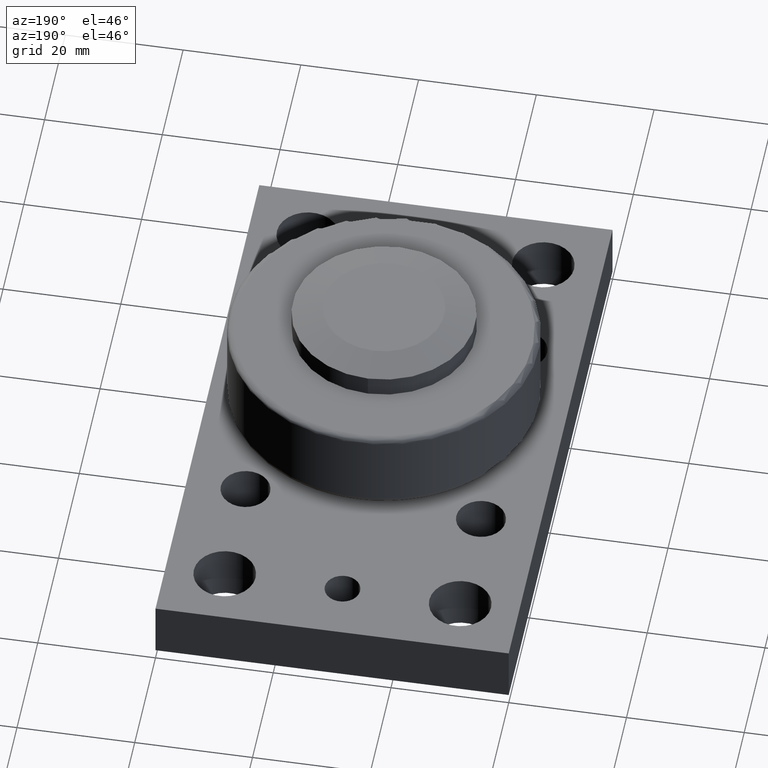
[diagram: clean part render]
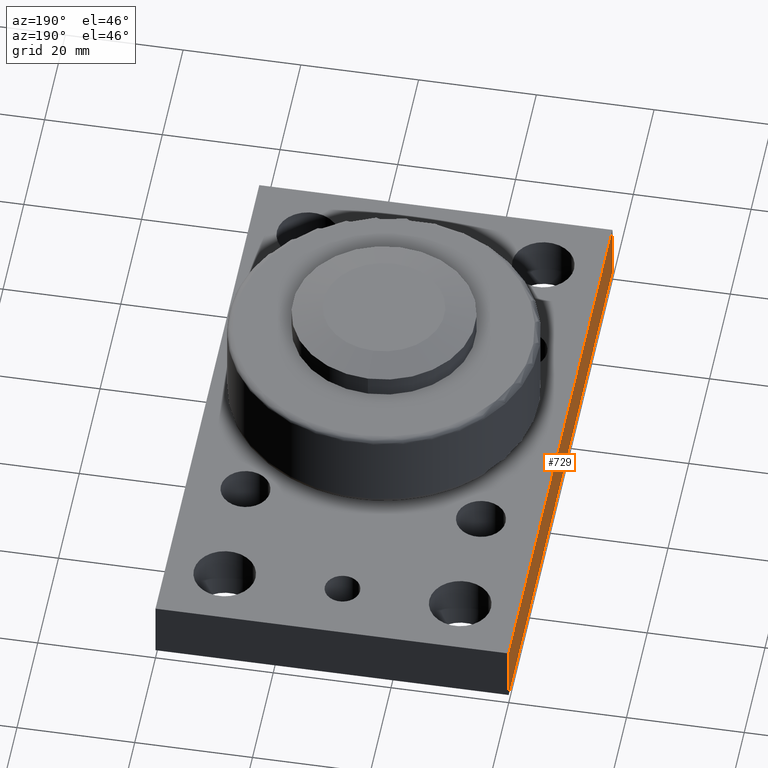
[diagram: same view with one face highlighted and labeled with its STEP entity id]
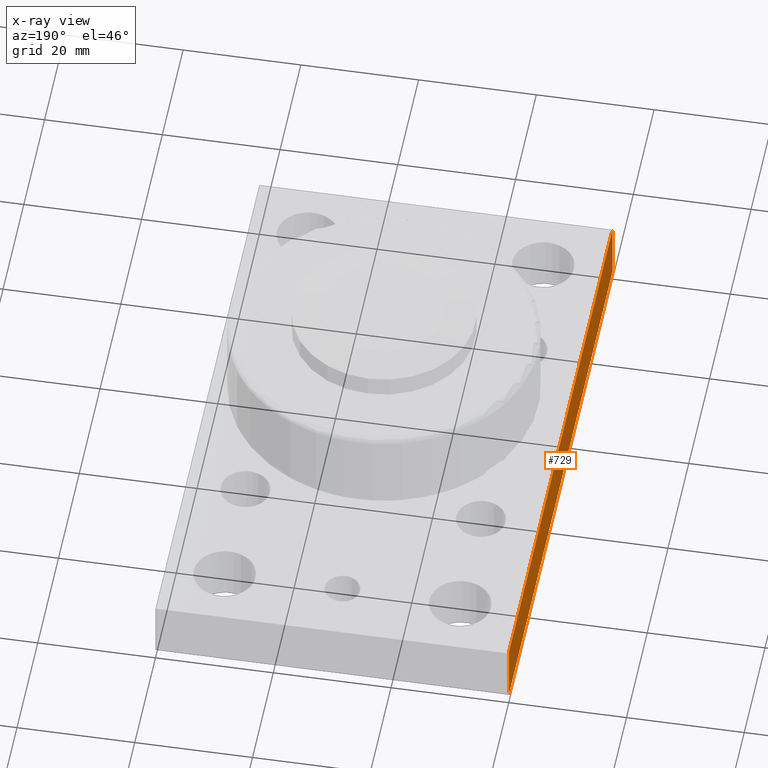
[diagram: x-ray of the same camera — body ghosted, the highlighted face saturated]
A machine part, auxiliary view. The second image highlights one B-rep face of the part: STEP entity #729.
The next image is the same camera in x-ray: the body ghosted, the highlighted face saturated — about 0% of this face is hidden behind the body in this view.
In plain terms, the highlighted planar face has unit normal (-1, 0, 0).
Its self-contained STEP definition (entity closure, byte-faithful):
#290=CARTESIAN_POINT('',(0.0,0.0,10.0));
#291=VERTEX_POINT('',#290);
#292=CARTESIAN_POINT('',(-2.723482E-014,100.0,10.0));
#293=VERTEX_POINT('',#292);
#294=CARTESIAN_POINT('',(0.0,0.0,10.0));
#295=DIRECTION('',(0.0,1.0,0.0));
#296=VECTOR('',#295,100.0);
#297=LINE('',#294,#296);
#298=EDGE_CURVE('',#291,#293,#297,.T.);
#443=CARTESIAN_POINT('',(0.0,0.0,0.0));
#444=VERTEX_POINT('',#443);
#453=CARTESIAN_POINT('',(-2.723482E-014,100.0,0.0));
#454=VERTEX_POINT('',#453);
#455=CARTESIAN_POINT('',(-2.723482E-014,100.0,0.0));
#456=DIRECTION('',(0.0,-1.0,0.0));
#457=VECTOR('',#456,100.0);
#458=LINE('',#455,#457);
#459=EDGE_CURVE('',#454,#444,#458,.T.);
#708=CARTESIAN_POINT('',(0.0,0.0,0.0));
#709=DIRECTION('',(-1.0,0.0,0.0));
#710=DIRECTION('',(0.0,0.0,1.0));
#711=AXIS2_PLACEMENT_3D('',#708,#709,#710);
#712=PLANE('',#711);
#713=ORIENTED_EDGE('',*,*,#298,.T.);
#714=CARTESIAN_POINT('',(-2.723482E-014,100.0,0.0));
#715=DIRECTION('',(0.0,0.0,1.0));
#716=VECTOR('',#715,10.0);
#717=LINE('',#714,#716);
#718=EDGE_CURVE('',#454,#293,#717,.T.);
#719=ORIENTED_EDGE('',*,*,#718,.F.);
#720=ORIENTED_EDGE('',*,*,#459,.T.);
#721=CARTESIAN_POINT('',(0.0,0.0,0.0));
#722=DIRECTION('',(0.0,0.0,1.0));
#723=VECTOR('',#722,10.0);
#724=LINE('',#721,#723);
#725=EDGE_CURVE('',#444,#291,#724,.T.);
#726=ORIENTED_EDGE('',*,*,#725,.T.);
#727=EDGE_LOOP('',(#713,#719,#720,#726));
#728=FACE_OUTER_BOUND('',#727,.T.);
#729=ADVANCED_FACE('',(#728),#712,.T.);